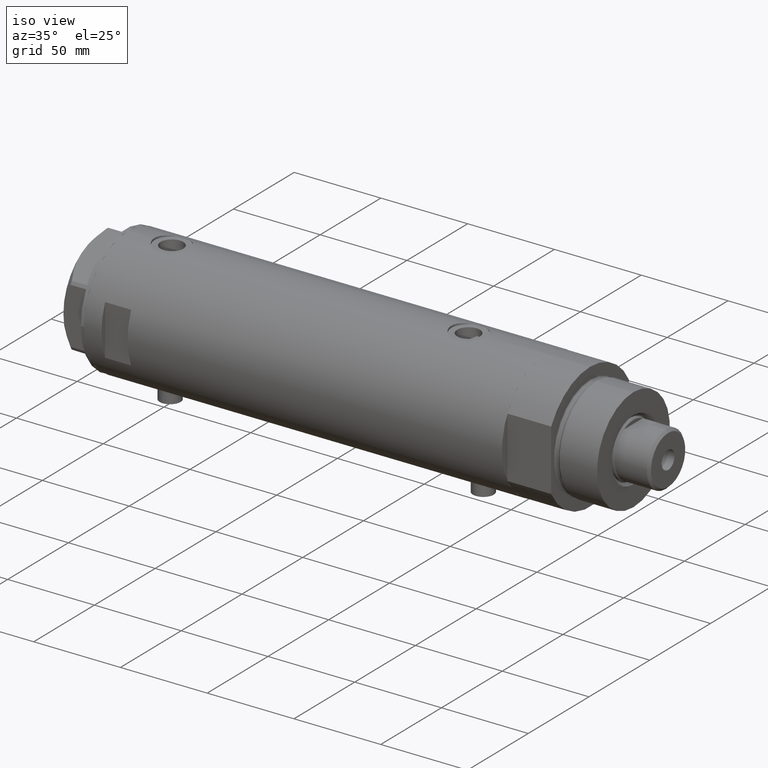
[diagram: clean part render]
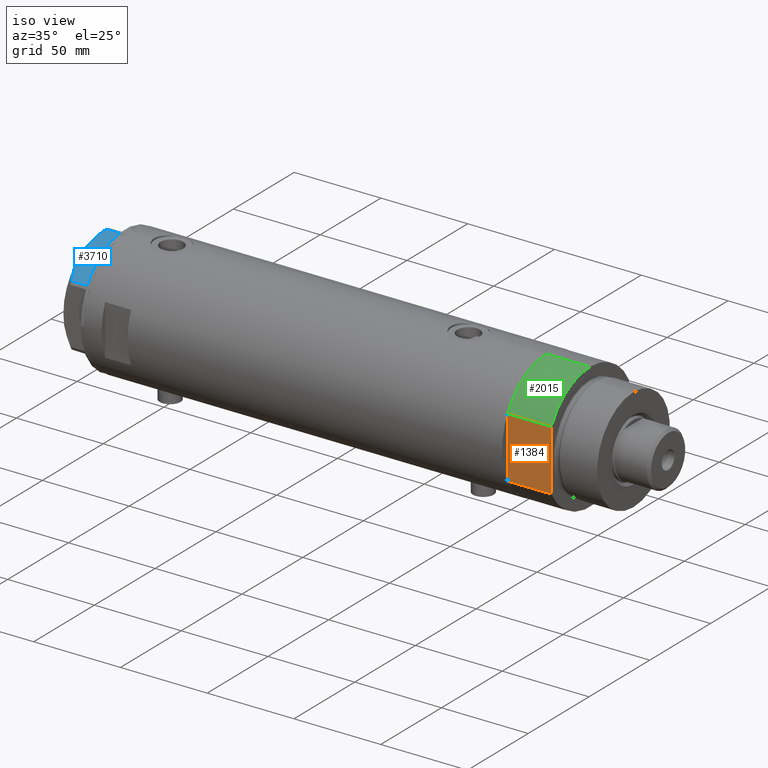
[diagram: same view with three faces highlighted in distinct colors, each labeled with its STEP entity id]
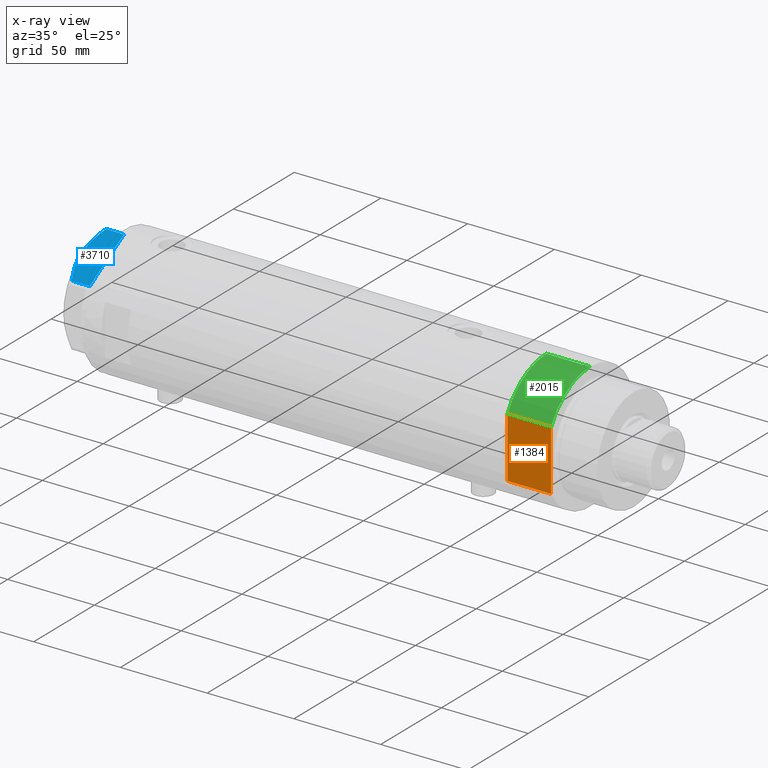
[diagram: x-ray of the same camera — body ghosted, the three highlighted faces saturated]
A machine part, iso view with three faces highlighted in distinct colors.
The next image is the same camera in x-ray (body ghosted, the three faces saturated) — at least one of them is partly hidden behind the body in this view.
Their STEP definitions:

[orange] entity #1384 — the highlighted planar face has unit normal (-0, 1, 0).
#70 = CARTESIAN_POINT ( 'NONE',  ( -17.55704986607943141, -32.00000000000000000, 0.000000000000000000 ) ) ;
#75 = PLANE ( 'NONE',  #176 ) ;
#176 = AXIS2_PLACEMENT_3D ( 'NONE', #3772, #4439, #2620 ) ;
#472 = CARTESIAN_POINT ( 'NONE',  ( -17.55704986607943141, -32.00000000000000000, 0.000000000000000000 ) ) ;
#481 = VERTEX_POINT ( 'NONE', #3909 ) ;
#776 = VERTEX_POINT ( 'NONE', #3706 ) ;
#942 = ORIENTED_EDGE ( 'NONE', *, *, #4764, .F. ) ;
#1137 = ORIENTED_EDGE ( 'NONE', *, *, #3477, .T. ) ;
#1181 = VERTEX_POINT ( 'NONE', #1691 ) ;
#1384 = ADVANCED_FACE ( 'NONE', ( #2229 ), #75, .F. ) ;
#1508 = VECTOR ( 'NONE', #2267, 1000.000000000000000 ) ;
#1570 = DIRECTION ( 'NONE',  ( -1.000000000000000000, -0.000000000000000000, -0.000000000000000000 ) ) ;
#1691 = CARTESIAN_POINT ( 'NONE',  ( -17.55704986607943496, -32.00000000000000000, 25.19999999999999929 ) ) ;
#1751 = CARTESIAN_POINT ( 'NONE',  ( 0.000000000000000000, -32.00000000000000000, 0.000000000000000000 ) ) ;
#1924 = LINE ( 'NONE', #472, #3658 ) ;
#2003 = VERTEX_POINT ( 'NONE', #1751 ) ;
#2229 = FACE_OUTER_BOUND ( 'NONE', #2395, .T. ) ;
#2242 = LINE ( 'NONE', #4157, #3882 ) ;
#2244 = LINE ( 'NONE', #3742, #1508 ) ;
#2267 = DIRECTION ( 'NONE',  ( -0.000000000000000000, -0.000000000000000000, 1.000000000000000000 ) ) ;
#2301 = CARTESIAN_POINT ( 'NONE',  ( -17.55704986607943141, -32.00000000000000000, 0.000000000000000000 ) ) ;
#2337 = LINE ( 'NONE', #2301, #3805 ) ;
#2395 = EDGE_LOOP ( 'NONE', ( #1137, #3977, #2981, #942, #2801 ) ) ;
#2458 = CARTESIAN_POINT ( 'NONE',  ( 17.55704986607943141, -32.00000000000000000, 0.000000000000000000 ) ) ;
#2620 = DIRECTION ( 'NONE',  ( 0.000000000000000000, -0.000000000000000000, 1.000000000000000000 ) ) ;
#2801 = ORIENTED_EDGE ( 'NONE', *, *, #4626, .T. ) ;
#2981 = ORIENTED_EDGE ( 'NONE', *, *, #4756, .F. ) ;
#3018 = DIRECTION ( 'NONE',  ( -1.000000000000000000, -0.000000000000000000, -0.000000000000000000 ) ) ;
#3163 = EDGE_CURVE ( 'NONE', #776, #1181, #2337, .T. ) ;
#3339 = LINE ( 'NONE', #70, #3969 ) ;
#3385 = DIRECTION ( 'NONE',  ( -1.000000000000000000, -0.000000000000000000, -0.000000000000000000 ) ) ;
#3477 = EDGE_CURVE ( 'NONE', #481, #1181, #2242, .T. ) ;
#3658 = VECTOR ( 'NONE', #3385, 1000.000000000000000 ) ;
#3706 = CARTESIAN_POINT ( 'NONE',  ( -17.55704986607943496, -32.00000000000000000, 0.000000000000000000 ) ) ;
#3742 = CARTESIAN_POINT ( 'NONE',  ( 17.55704986607943141, -32.00000000000000000, 0.000000000000000000 ) ) ;
#3747 = DIRECTION ( 'NONE',  ( -0.000000000000000000, -0.000000000000000000, 1.000000000000000000 ) ) ;
#3749 = VERTEX_POINT ( 'NONE', #2458 ) ;
#3772 = CARTESIAN_POINT ( 'NONE',  ( -17.55704986607943141, -32.00000000000000000, 0.000000000000000000 ) ) ;
#3805 = VECTOR ( 'NONE', #3747, 1000.000000000000000 ) ;
#3882 = VECTOR ( 'NONE', #1570, 1000.000000000000000 ) ;
#3909 = CARTESIAN_POINT ( 'NONE',  ( 17.55704986607943496, -32.00000000000000000, 25.19999999999999929 ) ) ;
#3969 = VECTOR ( 'NONE', #3018, 1000.000000000000000 ) ;
#3977 = ORIENTED_EDGE ( 'NONE', *, *, #3163, .F. ) ;
#4157 = CARTESIAN_POINT ( 'NONE',  ( -17.55704986607943141, -32.00000000000000000, 25.19999999999999929 ) ) ;
#4439 = DIRECTION ( 'NONE',  ( -0.000000000000000000, 1.000000000000000000, 0.000000000000000000 ) ) ;
#4626 = EDGE_CURVE ( 'NONE', #3749, #481, #2244, .T. ) ;
#4756 = EDGE_CURVE ( 'NONE', #2003, #776, #1924, .T. ) ;
#4764 = EDGE_CURVE ( 'NONE', #3749, #2003, #3339, .T. ) ;

[blue] entity #3710 — the highlighted planar face has unit normal (-0, 0.5, -0.866).
#367 = VERTEX_POINT ( 'NONE', #3746 ) ;
#455 = ORIENTED_EDGE ( 'NONE', *, *, #3251, .T. ) ;
#465 = CARTESIAN_POINT ( 'NONE',  ( -0.9699484522385841689, -34.08101615137752560, 10.40518423703605322 ) ) ;
#540 = CARTESIAN_POINT ( 'NONE',  ( -29.03005154776157326, -17.88050807568868805, 10.40518423703595374 ) ) ;
#546 = FACE_OUTER_BOUND ( 'NONE', #4347, .T. ) ;
#593 = CARTESIAN_POINT ( 'NONE',  ( -15.61187731150016411, -25.62749458302751648, 14.50000000000000355 ) ) ;
#722 = VERTEX_POINT ( 'NONE', #465 ) ;
#747 = ORIENTED_EDGE ( 'NONE', *, *, #837, .F. ) ;
#762 = CARTESIAN_POINT ( 'NONE',  ( -29.03005154776141339, -17.88050807568878042, 14.50000000000000000 ) ) ;
#837 = EDGE_CURVE ( 'NONE', #1102, #2824, #1694, .T. ) ;
#882 = VECTOR ( 'NONE', #1260, 1000.000000000000227 ) ;
#928 = CARTESIAN_POINT ( 'NONE',  ( -30.00000000000000000, -17.32050807568877460, 0.000000000000000000 ) ) ;
#1014 = EDGE_CURVE ( 'NONE', #1102, #367, #4141, .T. ) ;
#1102 = VERTEX_POINT ( 'NONE', #4594 ) ;
#1161 = CARTESIAN_POINT ( 'NONE',  ( -0.9699484522385850571, -34.08101615137752560, 14.50000000000000000 ) ) ;
#1260 = DIRECTION ( 'NONE',  ( 0.8660254037844387076, -0.4999999999999997780, 0.000000000000000000 ) ) ;
#1273 = CARTESIAN_POINT ( 'NONE',  ( -14.99999999999999645, -25.98076211353316367, 14.50000000000000000 ) ) ;
#1369 = CARTESIAN_POINT ( 'NONE',  ( -17.45962150578836258, -24.56069897506165489, 14.37423503257922164 ) ) ;
#1371 = CARTESIAN_POINT ( 'NONE',  ( -5.477433827011700451, -31.47861825688396564, 12.55468001512206300 ) ) ;
#1505 = EDGE_CURVE ( 'NONE', #3037, #722, #2311, .T. ) ;
#1657 = CARTESIAN_POINT ( 'NONE',  ( -14.99999999999999645, -25.98076211353316367, 14.50000000000000000 ) ) ;
#1694 = B_SPLINE_CURVE_WITH_KNOTS ( 'NONE', 3,
 ( #540, #2372, #3848, #2476, #3904, #4276, #1369, #1711, #593, #1273 ),
 .UNSPECIFIED., .F., .F.,
 ( 4, 2, 2, 2, 4 ),
 ( 0.001230196178133391958, 0.009592363676680756152, 0.01377344742595443955, 0.01586398930059127951, 0.01795453117522812295 ),
 .UNSPECIFIED. ) ;
#1711 = CARTESIAN_POINT ( 'NONE',  ( -16.22616138060132940, -25.27283751037305137, 14.47500996539161910 ) ) ;
#1848 = EDGE_CURVE ( 'NONE', #2824, #722, #2771, .T. ) ;
#1929 = ORIENTED_EDGE ( 'NONE', *, *, #1014, .T. ) ;
#2211 = CARTESIAN_POINT ( 'NONE',  ( -14.99999999999999645, -25.98076211353316367, 14.50000000000000000 ) ) ;
#2231 = ORIENTED_EDGE ( 'NONE', *, *, #1848, .F. ) ;
#2268 = DIRECTION ( 'NONE',  ( -0.000000000000000000, 0.000000000000000000, -1.000000000000000000 ) ) ;
#2311 = LINE ( 'NONE', #1161, #4507 ) ;
#2372 = CARTESIAN_POINT ( 'NONE',  ( -26.82462797925472842, -19.15380996664326219, 11.61522964162834626 ) ) ;
#2431 = VECTOR ( 'NONE', #2268, 1000.000000000000000 ) ;
#2476 = CARTESIAN_POINT ( 'NONE',  ( -21.07077273125423744, -22.47579984295447630, 13.71922620632299150 ) ) ;
#2518 = ORIENTED_EDGE ( 'NONE', *, *, #1505, .T. ) ;
#2639 = CARTESIAN_POINT ( 'NONE',  ( -0.9699484522385886098, -34.08101615137752560, 0.000000000000000000 ) ) ;
#2718 = LINE ( 'NONE', #928, #882 ) ;
#2771 = B_SPLINE_CURVE_WITH_KNOTS ( 'NONE', 3,
 ( #2211, #3629, #3656, #3303, #4053, #1371, #3216, #4680, #2852, #4322 ),
 .UNSPECIFIED., .F., .F.,
 ( 4, 2, 2, 2, 4 ),
 ( 0.01795453117522812295, 0.02625795893839792672, 0.02833381587919037853, 0.03040967281998283034, 0.03456138670156772702 ),
 .UNSPECIFIED. ) ;
#2824 = VERTEX_POINT ( 'NONE', #1657 ) ;
#2852 = CARTESIAN_POINT ( 'NONE',  ( -2.073315687465953960, -33.44398678110400169, 11.01056656432686509 ) ) ;
#3037 = VERTEX_POINT ( 'NONE', #2639 ) ;
#3216 = CARTESIAN_POINT ( 'NONE',  ( -4.902385341342997194, -31.81062265488187535, 12.31959434659020758 ) ) ;
#3251 = EDGE_CURVE ( 'NONE', #367, #3037, #2718, .T. ) ;
#3303 = CARTESIAN_POINT ( 'NONE',  ( -7.227334865371702222, -30.46831242133162476, 13.19311392138147276 ) ) ;
#3398 = DIRECTION ( 'NONE',  ( 0.000000000000000000, 0.000000000000000000, 1.000000000000000000 ) ) ;
#3590 = PLANE ( 'NONE',  #3732 ) ;
#3629 = CARTESIAN_POINT ( 'NONE',  ( -12.56968319190124639, -27.38390617690504669, 14.50000000000000711 ) ) ;
#3656 = CARTESIAN_POINT ( 'NONE',  ( -10.17780078270465616, -28.76486012972462447, 14.10092492974135148 ) ) ;
#3710 = ADVANCED_FACE ( 'NONE', ( #546 ), #3590, .F. ) ;
#3732 = AXIS2_PLACEMENT_3D ( 'NONE', #4324, #4349, #4373 ) ;
#3746 = CARTESIAN_POINT ( 'NONE',  ( -29.03005154776141339, -17.88050807568878042, 0.000000000000000000 ) ) ;
#3848 = CARTESIAN_POINT ( 'NONE',  ( -24.56959650245797988, -20.45575299680293568, 12.63511531451932512 ) ) ;
#3904 = CARTESIAN_POINT ( 'NONE',  ( -19.88494945387373747, -23.16043523136143278, 14.00566141361761119 ) ) ;
#4053 = CARTESIAN_POINT ( 'NONE',  ( -6.639151835533460222, -30.80790005194150183, 12.99122625442232604 ) ) ;
#4141 = LINE ( 'NONE', #762, #2431 ) ;
#4276 = CARTESIAN_POINT ( 'NONE',  ( -18.07068105770097688, -24.20790357827401351, 14.29910535634586921 ) ) ;
#4322 = CARTESIAN_POINT ( 'NONE',  ( -0.9699484522385841689, -34.08101615137752560, 10.40518423703605322 ) ) ;
#4324 = CARTESIAN_POINT ( 'NONE',  ( -30.00000000000000000, -17.32050807568877460, 14.50000000000000000 ) ) ;
#4347 = EDGE_LOOP ( 'NONE', ( #747, #1929, #455, #2518, #2231 ) ) ;
#4349 = DIRECTION ( 'NONE',  ( 0.4999999999999998335, 0.8660254037844388186, -0.000000000000000000 ) ) ;
#4373 = DIRECTION ( 'NONE',  ( -0.8660254037844387076, 0.4999999999999997780, 0.000000000000000000 ) ) ;
#4507 = VECTOR ( 'NONE', #3398, 1000.000000000000000 ) ;
#4594 = CARTESIAN_POINT ( 'NONE',  ( -29.03005154776157326, -17.88050807568868805, 10.40518423703595374 ) ) ;
#4680 = CARTESIAN_POINT ( 'NONE',  ( -3.192653970405496811, -32.79773652213460622, 11.56973717813738745 ) ) ;

[green] entity #2015 — the highlighted cylindrical surface (partial cylindrical patch) has radius 36.5 mm, axis along (-1, -0, 0).
#24 = VECTOR ( 'NONE', #728, 1000.000000000000000 ) ;
#210 = DIRECTION ( 'NONE',  ( -0.000000000000000000, -0.000000000000000000, -1.000000000000000000 ) ) ;
#366 = ORIENTED_EDGE ( 'NONE', *, *, #1452, .F. ) ;
#468 = AXIS2_PLACEMENT_3D ( 'NONE', #1231, #2131, #3274 ) ;
#670 = LINE ( 'NONE', #2165, #24 ) ;
#726 = CIRCLE ( 'NONE', #468, 36.50000000000000000 ) ;
#728 = DIRECTION ( 'NONE',  ( -0.000000000000000000, -0.000000000000000000, -1.000000000000000000 ) ) ;
#776 = VERTEX_POINT ( 'NONE', #3706 ) ;
#1181 = VERTEX_POINT ( 'NONE', #1691 ) ;
#1231 = CARTESIAN_POINT ( 'NONE',  ( 0.000000000000000000, 0.000000000000000000, 0.000000000000000000 ) ) ;
#1379 = ORIENTED_EDGE ( 'NONE', *, *, #1566, .T. ) ;
#1394 = CYLINDRICAL_SURFACE ( 'NONE', #2726, 36.50000000000000000 ) ;
#1417 = AXIS2_PLACEMENT_3D ( 'NONE', #2530, #4021, #2254 ) ;
#1452 = EDGE_CURVE ( 'NONE', #3003, #1181, #3351, .T. ) ;
#1566 = EDGE_CURVE ( 'NONE', #3003, #4558, #670, .T. ) ;
#1572 = EDGE_CURVE ( 'NONE', #4558, #776, #726, .T. ) ;
#1691 = CARTESIAN_POINT ( 'NONE',  ( -17.55704986607943496, -32.00000000000000000, 25.19999999999999929 ) ) ;
#2015 = ADVANCED_FACE ( 'NONE', ( #3708 ), #1394, .T. ) ;
#2131 = DIRECTION ( 'NONE',  ( 0.000000000000000000, 0.000000000000000000, 1.000000000000000000 ) ) ;
#2165 = CARTESIAN_POINT ( 'NONE',  ( -36.50000000000000000, 0.000000000000000000, 25.19999999999999929 ) ) ;
#2247 = ORIENTED_EDGE ( 'NONE', *, *, #3163, .T. ) ;
#2254 = DIRECTION ( 'NONE',  ( 1.000000000000000000, 0.000000000000000000, 0.000000000000000000 ) ) ;
#2301 = CARTESIAN_POINT ( 'NONE',  ( -17.55704986607943141, -32.00000000000000000, 0.000000000000000000 ) ) ;
#2337 = LINE ( 'NONE', #2301, #3805 ) ;
#2530 = CARTESIAN_POINT ( 'NONE',  ( 0.000000000000000000, 0.000000000000000000, 25.19999999999999929 ) ) ;
#2550 = EDGE_LOOP ( 'NONE', ( #366, #1379, #2719, #2247 ) ) ;
#2564 = CARTESIAN_POINT ( 'NONE',  ( -36.50000000000000000, 0.000000000000000000, 0.000000000000000000 ) ) ;
#2719 = ORIENTED_EDGE ( 'NONE', *, *, #1572, .T. ) ;
#2726 = AXIS2_PLACEMENT_3D ( 'NONE', #3974, #210, #4279 ) ;
#3003 = VERTEX_POINT ( 'NONE', #4714 ) ;
#3163 = EDGE_CURVE ( 'NONE', #776, #1181, #2337, .T. ) ;
#3274 = DIRECTION ( 'NONE',  ( 1.000000000000000000, 0.000000000000000000, 0.000000000000000000 ) ) ;
#3351 = CIRCLE ( 'NONE', #1417, 36.50000000000000000 ) ;
#3706 = CARTESIAN_POINT ( 'NONE',  ( -17.55704986607943496, -32.00000000000000000, 0.000000000000000000 ) ) ;
#3708 = FACE_OUTER_BOUND ( 'NONE', #2550, .T. ) ;
#3747 = DIRECTION ( 'NONE',  ( -0.000000000000000000, -0.000000000000000000, 1.000000000000000000 ) ) ;
#3805 = VECTOR ( 'NONE', #3747, 1000.000000000000000 ) ;
#3974 = CARTESIAN_POINT ( 'NONE',  ( 0.000000000000000000, 0.000000000000000000, 25.19999999999999929 ) ) ;
#4021 = DIRECTION ( 'NONE',  ( 0.000000000000000000, 0.000000000000000000, 1.000000000000000000 ) ) ;
#4279 = DIRECTION ( 'NONE',  ( -1.000000000000000000, 0.000000000000000000, 0.000000000000000000 ) ) ;
#4558 = VERTEX_POINT ( 'NONE', #2564 ) ;
#4714 = CARTESIAN_POINT ( 'NONE',  ( -36.50000000000000000, 0.000000000000000000, 25.19999999999999929 ) ) ;